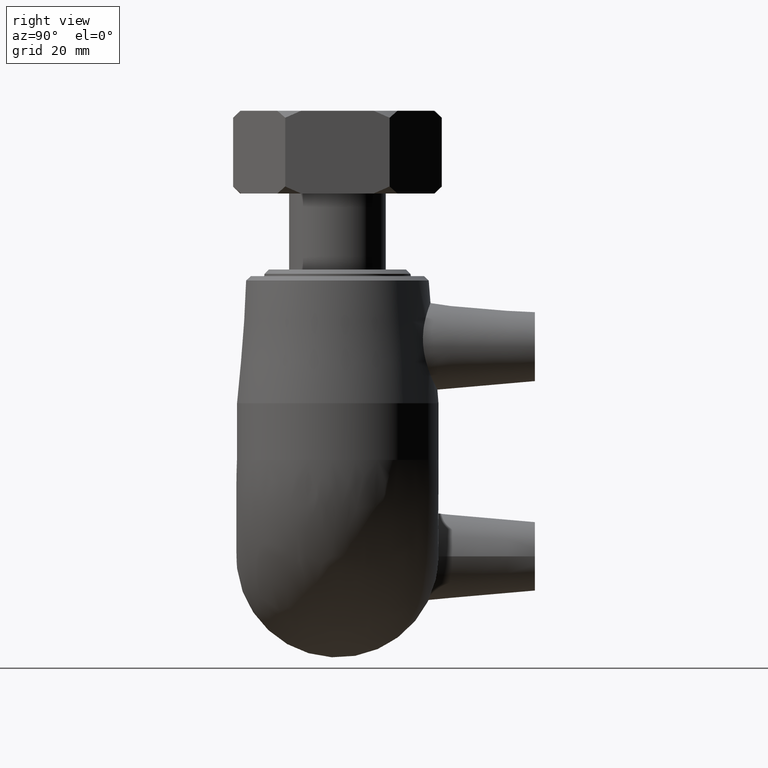
[diagram: clean part render]
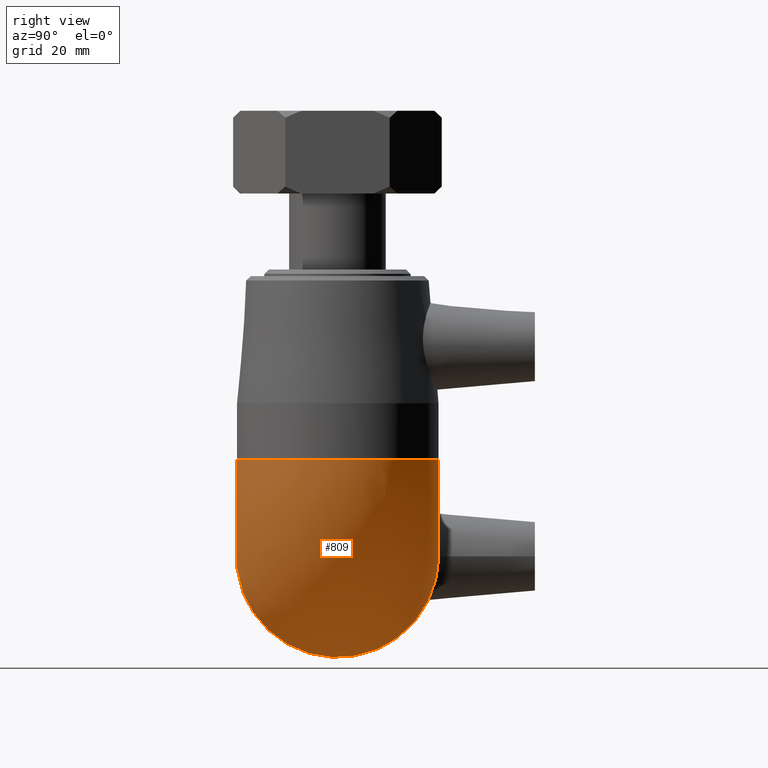
[diagram: same view with one face highlighted and labeled with its STEP entity id]
A machine part, right view. The second image highlights one B-rep face of the part: STEP entity #809.
In plain terms, the highlighted face is a freeform B-spline surface patch.
Its self-contained STEP definition (entity closure, byte-faithful):
#16=(
BOUNDED_SURFACE()
B_SPLINE_SURFACE(2,2,((#1496,#1497,#1498),(#1499,#1500,#1501),(#1502,#1503,
#1504),(#1505,#1506,#1507),(#1508,#1509,#1510),(#1511,#1512,#1513),(#1514,
#1515,#1516),(#1517,#1518,#1519),(#1520,#1521,#1522)),.UNSPECIFIED.,.F.,
 .F.,.F.)
B_SPLINE_SURFACE_WITH_KNOTS((3,2,2,2,3),(3,3),(-2.83892737963536,-1.41946368981768,
0.,1.41946368981768,2.83892737963536),(-3.42400718472467E-18,1.5707963267949),
 .UNSPECIFIED.)
GEOMETRIC_REPRESENTATION_ITEM()
RATIONAL_B_SPLINE_SURFACE(((1.,0.707106781186547,1.),(0.758536641266881,
0.536366402818279,0.758536641266881),(1.,0.707106781186547,1.),(0.75853664126688,
0.536366402818279,0.75853664126688),(1.,0.707106781186547,1.),(0.75853664126688,
0.536366402818279,0.75853664126688),(1.,0.707106781186547,1.),(0.758536641266881,
0.536366402818279,0.758536641266881),(1.,0.707106781186547,1.)))
REPRESENTATION_ITEM('')
SURFACE()
);
#202=FACE_OUTER_BOUND('',#290,.T.);
#290=EDGE_LOOP('',(#708,#709));
#362=CIRCLE('',#913,22.);
#363=CIRCLE('',#914,22.);
#440=VERTEX_POINT('',#1523);
#441=VERTEX_POINT('',#1524);
#536=EDGE_CURVE('',#440,#441,#362,.T.);
#537=EDGE_CURVE('',#441,#440,#363,.T.);
#708=ORIENTED_EDGE('',*,*,#536,.T.);
#709=ORIENTED_EDGE('',*,*,#537,.T.);
#809=ADVANCED_FACE('',(#202),#16,.F.);
#913=AXIS2_PLACEMENT_3D('',#1525,#1128,#1129);
#914=AXIS2_PLACEMENT_3D('',#1526,#1130,#1131);
#1128=DIRECTION('center_axis',(6.12323399573677E-17,-2.27504718160893E-18,
-1.));
#1129=DIRECTION('ref_axis',(-1.,0.,-6.12323399573677E-17));
#1130=DIRECTION('center_axis',(1.,-2.27504718160893E-18,0.));
#1131=DIRECTION('ref_axis',(0.,0.,-1.));
#1496=CARTESIAN_POINT('Ctrl Pts',(-21.,6.55743852430199,21.));
#1497=CARTESIAN_POINT('Ctrl Pts',(-21.,6.55743852430199,21.));
#1498=CARTESIAN_POINT('Ctrl Pts',(-21.,6.55743852430199,21.));
#1499=CARTESIAN_POINT('Ctrl Pts',(-21.,24.59775117939,15.3667504192892));
#1500=CARTESIAN_POINT('Ctrl Pts',(-15.3667504192892,24.59775117939,15.3667504192892));
#1501=CARTESIAN_POINT('Ctrl Pts',(-15.3667504192892,24.59775117939,21.));
#1502=CARTESIAN_POINT('Ctrl Pts',(-21.,21.7485631709316,-3.31662479035539));
#1503=CARTESIAN_POINT('Ctrl Pts',(3.31662479035539,21.7485631709316,-3.31662479035539));
#1504=CARTESIAN_POINT('Ctrl Pts',(3.31662479035539,21.7485631709316,21.));
#1505=CARTESIAN_POINT('Ctrl Pts',(-21.,18.8993751624731,-22.));
#1506=CARTESIAN_POINT('Ctrl Pts',(22.,18.8993751624731,-22.));
#1507=CARTESIAN_POINT('Ctrl Pts',(22.,18.8993751624731,21.));
#1508=CARTESIAN_POINT('Ctrl Pts',(-21.,0.,-22.));
#1509=CARTESIAN_POINT('Ctrl Pts',(22.,-9.78270288091839E-17,-22.));
#1510=CARTESIAN_POINT('Ctrl Pts',(22.,-9.78270288091839E-17,21.));
#1511=CARTESIAN_POINT('Ctrl Pts',(-21.,-18.8993751624731,-22.));
#1512=CARTESIAN_POINT('Ctrl Pts',(22.,-18.8993751624731,-22.));
#1513=CARTESIAN_POINT('Ctrl Pts',(22.,-18.8993751624731,21.));
#1514=CARTESIAN_POINT('Ctrl Pts',(-21.,-21.7485631709316,-3.31662479035539));
#1515=CARTESIAN_POINT('Ctrl Pts',(3.31662479035539,-21.7485631709316,-3.31662479035539));
#1516=CARTESIAN_POINT('Ctrl Pts',(3.31662479035539,-21.7485631709316,21.));
#1517=CARTESIAN_POINT('Ctrl Pts',(-21.,-24.59775117939,15.3667504192892));
#1518=CARTESIAN_POINT('Ctrl Pts',(-15.3667504192892,-24.59775117939,15.3667504192892));
#1519=CARTESIAN_POINT('Ctrl Pts',(-15.3667504192892,-24.59775117939,21.));
#1520=CARTESIAN_POINT('Ctrl Pts',(-21.,-6.55743852430199,21.));
#1521=CARTESIAN_POINT('Ctrl Pts',(-21.,-6.55743852430199,21.));
#1522=CARTESIAN_POINT('Ctrl Pts',(-21.,-6.55743852430199,21.));
#1523=CARTESIAN_POINT('',(-21.,6.557438524302,21.));
#1524=CARTESIAN_POINT('',(-21.,-6.557438524302,21.));
#1525=CARTESIAN_POINT('Origin',(-1.28587913910472E-15,-9.10018872643571E-17,
21.));
#1526=CARTESIAN_POINT('Origin',(-21.,-9.10018872643571E-17,0.));